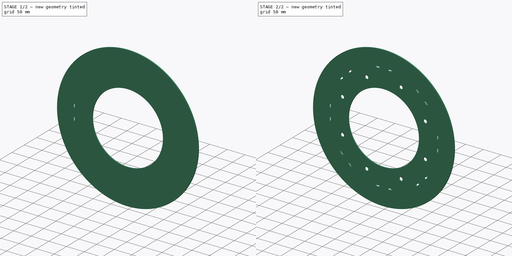
[diagram: build sequence overview — one tinted view per stage of 2, left to right]
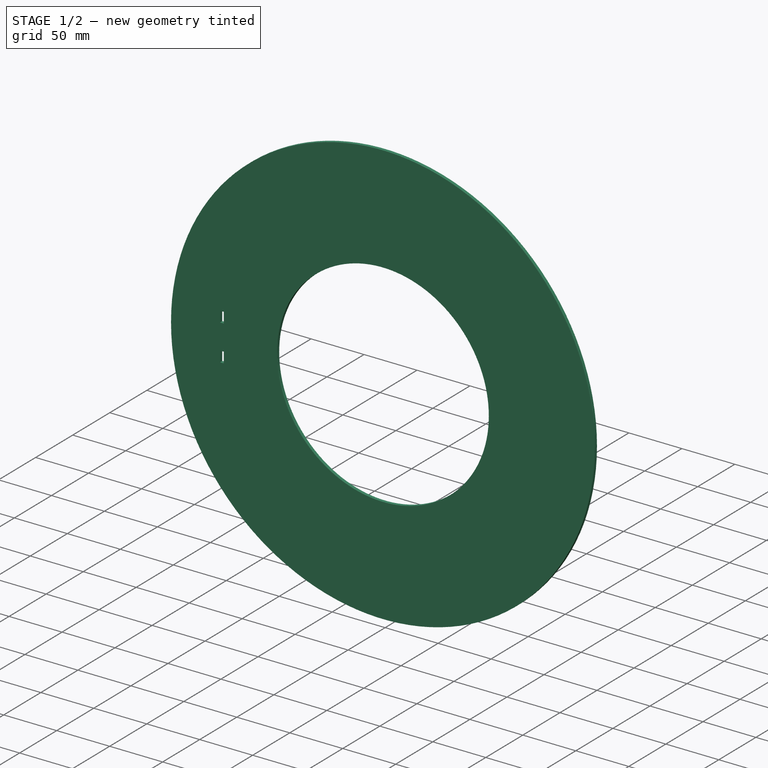
[diagram: stage 1 of 2 — iso view after this stage's code; geometry added in this stage tinted green]
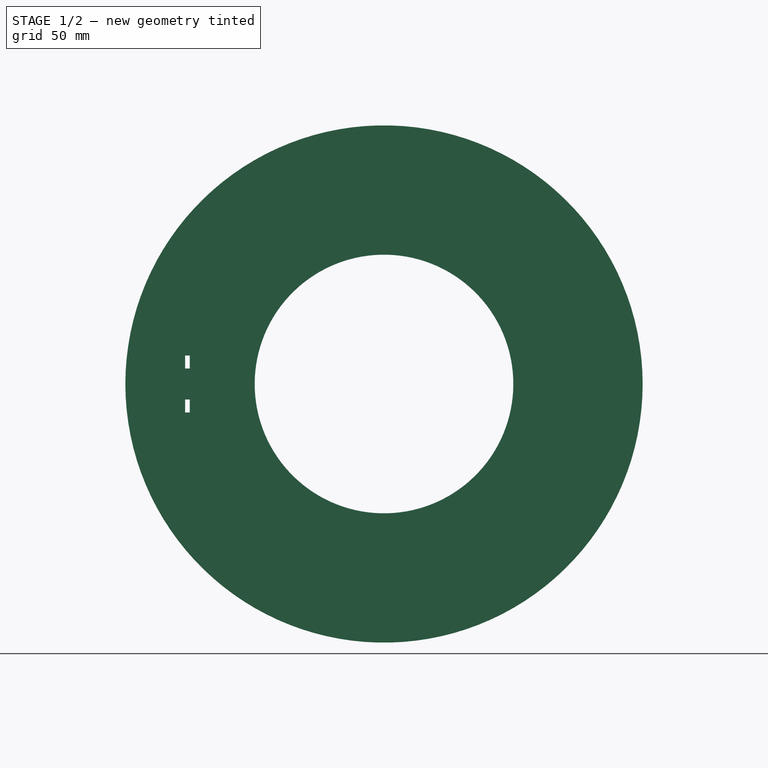
[diagram: stage 1 of 2 — front view after this stage's code; geometry added in this stage tinted green]
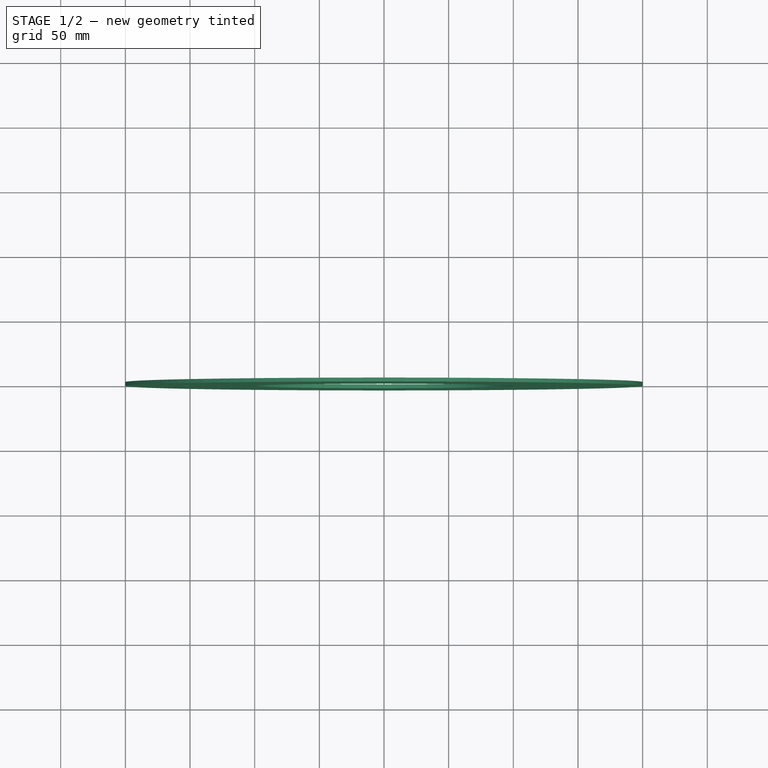
[diagram: stage 1 of 2 — top view after this stage's code; geometry added in this stage tinted green]
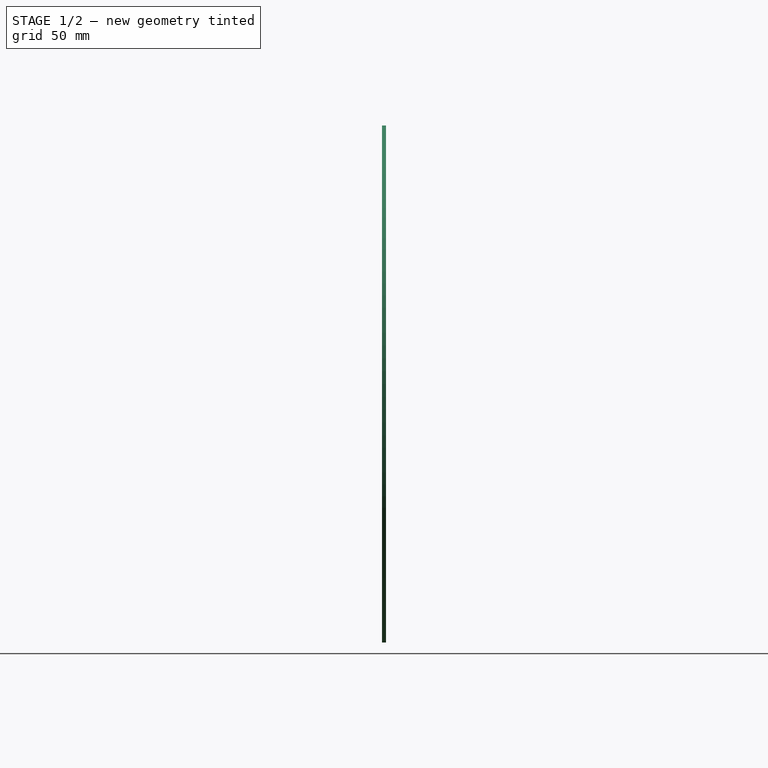
[diagram: stage 1 of 2 — right view after this stage's code; geometry added in this stage tinted green]
FCSTD DOCUMENT  (FreeCAD 0.21R33771 (Git))
Label: FaceFlangeInterlock
License: Creative Commons Attribution-ShareAlike 4.0
LicenseURL: https://creativecommons.org/licenses/by-sa/4.0/
objects: Sketcher::SketchObject×3, PartDesign::Pocket×2, PartDesign::Pad×1, PartDesign::PolarPattern×1, PartDesign::Body×1
note: 11 computed .brp shape members not serialized (recipe doc carries the construction recipe); baked Part::Feature solids carry a one-line shape summary decoded from their .brp

FEATURE [Sketcher::SketchObject] Sketch
  FullyConstrained = true
  MapMode = 5
  Placement = pos=(0,0,0) rot=(1,0,0;1.5708rad)
  Support = -> [XZ_Plane]
  sketch-geometry (24):
    g0: Circle CenterX=0 CenterY=0 CenterZ=0 NormalX=0 NormalY=0 NormalZ=1 AngleXU=0 Radius=127
    g1: Circle CenterX=-127 CenterY=0 CenterZ=0 NormalX=0 NormalY=0 NormalZ=1 AngleXU=0 Radius=15
    g2: LineSegment StartX=-127 StartY=0 StartZ=0 EndX=-142 EndY=0 EndZ=0
    g3: Circle CenterX=0 CenterY=0 CenterZ=0 NormalX=0 NormalY=0 NormalZ=1 AngleXU=0 Radius=200
    g4: Circle CenterX=0 CenterY=0 CenterZ=0 NormalX=0 NormalY=0 NormalZ=1 AngleXU=0 Radius=100
    g5: LineSegment StartX=-152 StartY=62.9605 StartZ=0 EndX=-152 EndY=-62.9605 EndZ=0
    g6: LineSegment StartX=-152 StartY=-62.9605 StartZ=0 EndX=-62.9605 EndY=-152 EndZ=0
    g7: LineSegment StartX=-62.9605 StartY=-152 StartZ=0 EndX=62.9605 EndY=-152 EndZ=0
    g8: LineSegment StartX=62.9605 StartY=-152 StartZ=0 EndX=152 EndY=-62.9605 EndZ=0
    g9: LineSegment StartX=152 StartY=-62.9605 StartZ=0 EndX=152 EndY=62.9605 EndZ=0
    g10: LineSegment StartX=152 StartY=62.9605 StartZ=0 EndX=62.9605 EndY=152 EndZ=0
    g11: LineSegment StartX=62.9605 StartY=152 StartZ=0 EndX=-62.9605 EndY=152 EndZ=0
    g12: LineSegment StartX=-62.9605 StartY=152 StartZ=0 EndX=-152 EndY=62.9605 EndZ=0
    g13: Circle CenterX=0 CenterY=0 CenterZ=0 NormalX=0 NormalY=0 NormalZ=1 AngleXU=0 Radius=164.524
    g14: LineSegment StartX=-153.625 StartY=12 StartZ=0 EndX=-153.625 EndY=22 EndZ=0
    g15: LineSegment StartX=-153.625 StartY=22 StartZ=0 EndX=-150.375 EndY=22 EndZ=0
    g16: LineSegment StartX=-150.375 StartY=22 StartZ=0 EndX=-150.375 EndY=12 EndZ=0
    g17: LineSegment StartX=-150.375 StartY=12 StartZ=0 EndX=-153.625 EndY=12 EndZ=0
    g18: GeomPoint X=-152 Y=17 Z=0
    g19: LineSegment StartX=-150.375 StartY=-12 StartZ=0 EndX=-150.375 EndY=-22 EndZ=0
    g20: LineSegment StartX=-150.375 StartY=-22 StartZ=0 EndX=-153.625 EndY=-22 EndZ=0
    g21: LineSegment StartX=-153.625 StartY=-22 StartZ=0 EndX=-153.625 EndY=-12 EndZ=0
    g22: LineSegment StartX=-153.625 StartY=-12 StartZ=0 EndX=-150.375 EndY=-12 EndZ=0
    g23: GeomPoint X=-152 Y=-17 Z=0
  constraints (58):
    c: Coincident(g0,g-1)
    c: PointOnObject(g1,g0)
    c: Diameter(g1) = 30
    c: Diameter(g0) = 254
    c: PointOnObject(g1,g-1)
    c: Coincident(g2,g1)
    c: PointOnObject(g2,g1)
    c: Horizontal(g2)
    c: Coincident(g3,g0)
    c: Diameter(g3) = 400
    c: Diameter(g4) = 200
    c: Coincident(g4,g3)
    c: Coincident(g5,g6)
    c: Coincident(g6,g7)
    c: Coincident(g7,g8)
    c: Coincident(g8,g9)
    c: Coincident(g9,g10)
    c: Coincident(g10,g11)
    c: Coincident(g11,g12)
    c: Coincident(g12,g5)
    c: Equal(g5, g6-g12) x7
    c: PointOnObject(g5,g13)
    c: PointOnObject(g6,g13)
    c: PointOnObject(g7,g13)
    c: PointOnObject(g8,g13)
    c: PointOnObject(g9,g13)
    c: PointOnObject(g10,g13)
    c: PointOnObject(g11,g13)
    c: PointOnObject(g12,g13)
    c: Coincident(g13,g3)
    c: Vertical(g5)
    c: DistanceX(g5,g2) = 10
    c: Coincident(g14,g15)
    c: Coincident(g15,g16)
    c: Coincident(g16,g17)
    c: Coincident(g17,g14)
    c: Horizontal(g15)
    c: Horizontal(g17)
    c: Vertical(g14)
    c: Vertical(g16)
    c: Symmetric(g15,g14,g18)
    c: PointOnObject(g18,g5)
    c: Coincident(g19,g20)
    c: Coincident(g20,g21)
    c: Coincident(g21,g22)
    c: Coincident(g22,g19)
    c: Horizontal(g20)
    c: Horizontal(g22)
    c: Vertical(g19)
    c: Vertical(g21)
    c: Symmetric(g20,g19,g23)
    c: PointOnObject(g23,g5)
    c: Equal(g14,g21)
    c: Equal(g15,g22)
    c: DistanceX(g15,g15) = 3.25
    c: DistanceY(g14,g14) = 10
    c: DistanceY(g3,g14) = 12
    c: DistanceY(g19,g3) = 12
FEATURE [PartDesign::Pad] Pad
  Direction = (0,-1,2e-16)
  Length = 3
  Length2 = 10
  Placement = pos=(0,0,0) rot=(1,0,0;1.5708rad)
  Profile = -> Sketch
  ReferenceAxis = -> Sketch [N_Axis]
  Type = 0
FEATURE [Sketcher::SketchObject] Sketch001
  FullyConstrained = true
  MapMode = 5
  Placement = pos=(0,0,0) rot=(1,0,0;1.5708rad)
  Support = -> [XZ_Plane]
  expr: Constraints[10] = Sketch.Constraints[10]
  expr: Constraints[2] = Sketch.Constraints[2]
  expr: Constraints[37] = Sketch.Constraints[37]
  expr: Constraints[3] = Sketch.Constraints[3]
  expr: Constraints[61] = Sketch.Constraints[61]
  expr: Constraints[62] = Sketch.Constraints[62]
  expr: Constraints[63] = Sketch.Constraints[63]
  expr: Constraints[9] = Sketch.Constraints[9]
  sketch-geometry (24):
    g0: Circle CenterX=0 CenterY=0 CenterZ=0 NormalX=0 NormalY=0 NormalZ=1 AngleXU=0 Radius=127
    g1: Circle CenterX=-127 CenterY=0 CenterZ=0 NormalX=0 NormalY=0 NormalZ=1 AngleXU=0 Radius=15
    g2: LineSegment StartX=-127 StartY=0 StartZ=0 EndX=-142 EndY=0 EndZ=0
    g3: Circle CenterX=0 CenterY=0 CenterZ=0 NormalX=0 NormalY=0 NormalZ=1 AngleXU=0 Radius=200
    g4: Circle CenterX=0 CenterY=0 CenterZ=0 NormalX=0 NormalY=0 NormalZ=1 AngleXU=0 Radius=100
    g5: LineSegment StartX=-152 StartY=62.9605 StartZ=0 EndX=-152 EndY=-62.9605 EndZ=0
    g6: LineSegment StartX=-152 StartY=-62.9605 StartZ=0 EndX=-62.9605 EndY=-152 EndZ=0
    g7: LineSegment StartX=-62.9605 StartY=-152 StartZ=0 EndX=62.9605 EndY=-152 EndZ=0
    g8: LineSegment StartX=62.9605 StartY=-152 StartZ=0 EndX=152 EndY=-62.9605 EndZ=0
    g9: LineSegment StartX=152 StartY=-62.9605 StartZ=0 EndX=152 EndY=62.9605 EndZ=0
    g10: LineSegment StartX=152 StartY=62.9605 StartZ=0 EndX=62.9605 EndY=152 EndZ=0
    g11: LineSegment StartX=62.9605 StartY=152 StartZ=0 EndX=-62.9605 EndY=152 EndZ=0
    g12: LineSegment StartX=-62.9605 StartY=152 StartZ=0 EndX=-152 EndY=62.9605 EndZ=0
    g13: Circle CenterX=0 CenterY=0 CenterZ=0 NormalX=0 NormalY=0 NormalZ=1 AngleXU=0 Radius=164.524
    g14: LineSegment StartX=-153.75 StartY=12 StartZ=0 EndX=-153.75 EndY=22 EndZ=0
    g15: LineSegment StartX=-153.75 StartY=22 StartZ=0 EndX=-150.25 EndY=22 EndZ=0
    g16: LineSegment StartX=-150.25 StartY=22 StartZ=0 EndX=-150.25 EndY=12 EndZ=0
    g17: LineSegment StartX=-150.25 StartY=12 StartZ=0 EndX=-153.75 EndY=12 EndZ=0
    g18: GeomPoint X=-152 Y=17 Z=0
    g19: LineSegment StartX=-150.25 StartY=-12 StartZ=0 EndX=-150.25 EndY=-22 EndZ=0
    g20: LineSegment StartX=-150.25 StartY=-22 StartZ=0 EndX=-153.75 EndY=-22 EndZ=0
    g21: LineSegment StartX=-153.75 StartY=-22 StartZ=0 EndX=-153.75 EndY=-12 EndZ=0
    g22: LineSegment StartX=-153.75 StartY=-12 StartZ=0 EndX=-150.25 EndY=-12 EndZ=0
    g23: GeomPoint X=-152 Y=-17 Z=0
  constraints (58):
    c: Coincident(g0,g-1)
    c: PointOnObject(g1,g0)
    c: Diameter(g1) = 30
    c: Diameter(g0) = 254
    c: PointOnObject(g1,g-1)
    c: Coincident(g2,g1)
    c: PointOnObject(g2,g1)
    c: Horizontal(g2)
    c: Coincident(g3,g0)
    c: Diameter(g3) = 400
    c: Diameter(g4) = 200
    c: Coincident(g4,g3)
    c: Coincident(g5,g6)
    c: Coincident(g6,g7)
    c: Coincident(g7,g8)
    c: Coincident(g8,g9)
    c: Coincident(g9,g10)
    c: Coincident(g10,g11)
    c: Coincident(g11,g12)
    c: Coincident(g12,g5)
    c: Equal(g5, g6-g12) x7
    c: PointOnObject(g5,g13)
    c: PointOnObject(g6,g13)
    c: PointOnObject(g7,g13)
    c: PointOnObject(g8,g13)
    c: PointOnObject(g9,g13)
    c: PointOnObject(g10,g13)
    c: PointOnObject(g11,g13)
    c: PointOnObject(g12,g13)
    c: Coincident(g13,g3)
    c: Vertical(g5)
    c: DistanceX(g5,g2) = 10
    c: Coincident(g14,g15)
    c: Coincident(g15,g16)
    c: Coincident(g16,g17)
    c: Coincident(g17,g14)
    c: Horizontal(g15)
    c: Horizontal(g17)
    c: Vertical(g14)
    c: Vertical(g16)
    c: Symmetric(g15,g14,g18)
    c: PointOnObject(g18,g5)
    c: Coincident(g19,g20)
    c: Coincident(g20,g21)
    c: Coincident(g21,g22)
    c: Coincident(g22,g19)
    c: Horizontal(g20)
    c: Horizontal(g22)
    c: Vertical(g19)
    c: Vertical(g21)
    c: Symmetric(g20,g19,g23)
    c: PointOnObject(g23,g5)
    c: Equal(g14,g21)
    c: Equal(g15,g22)
    c: DistanceX(g15,g15) = 3.5
    c: DistanceY(g14,g14) = 10
    c: DistanceY(g3,g14) = 12
    c: DistanceY(g19,g3) = 12
FEATURE [PartDesign::Pocket] Pocket
  BaseFeature = -> Pad
  Direction = (0,1,-2e-16)
  Length = 5
  Length2 = 5
  Placement = pos=(0,0,0) rot=(1,0,0;1.5708rad)
  Profile = -> Sketch001
  ReferenceAxis = -> Sketch001 [N_Axis]
  Reversed = true
  Type = 1
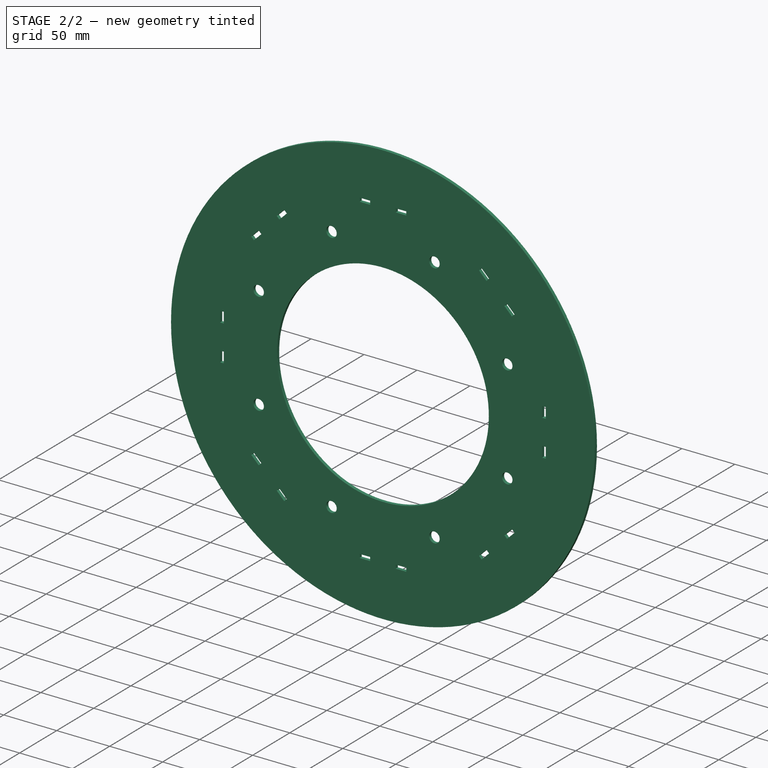
[diagram: stage 2 of 2 — iso view after this stage's code; geometry added in this stage tinted green]
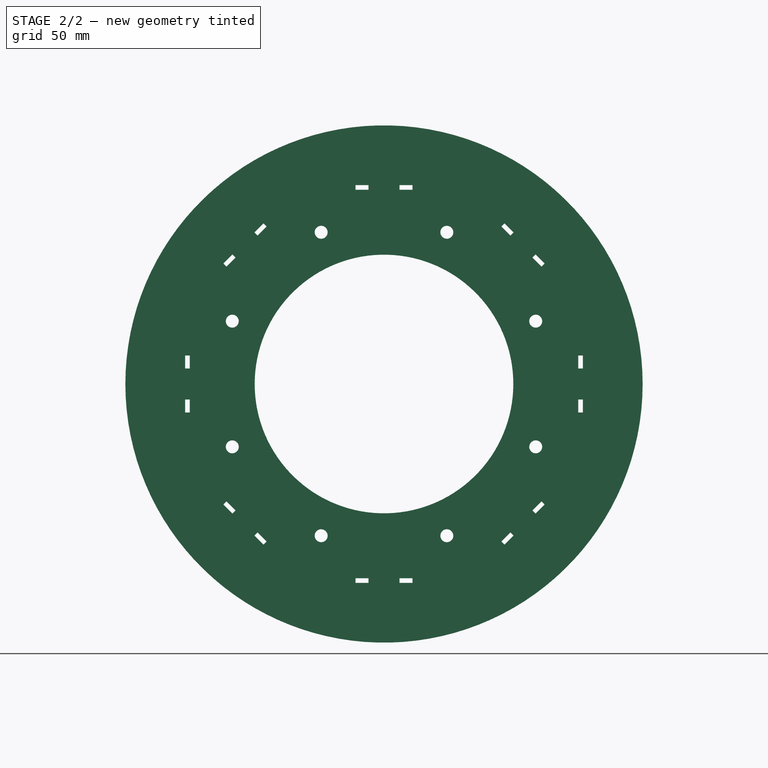
[diagram: stage 2 of 2 — front view after this stage's code; geometry added in this stage tinted green]
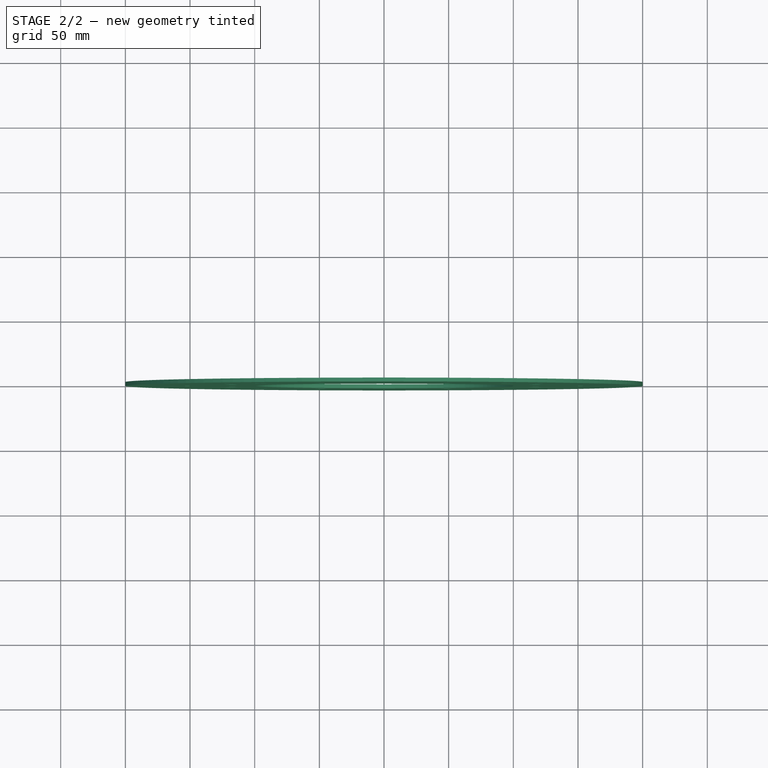
[diagram: stage 2 of 2 — top view after this stage's code; geometry added in this stage tinted green]
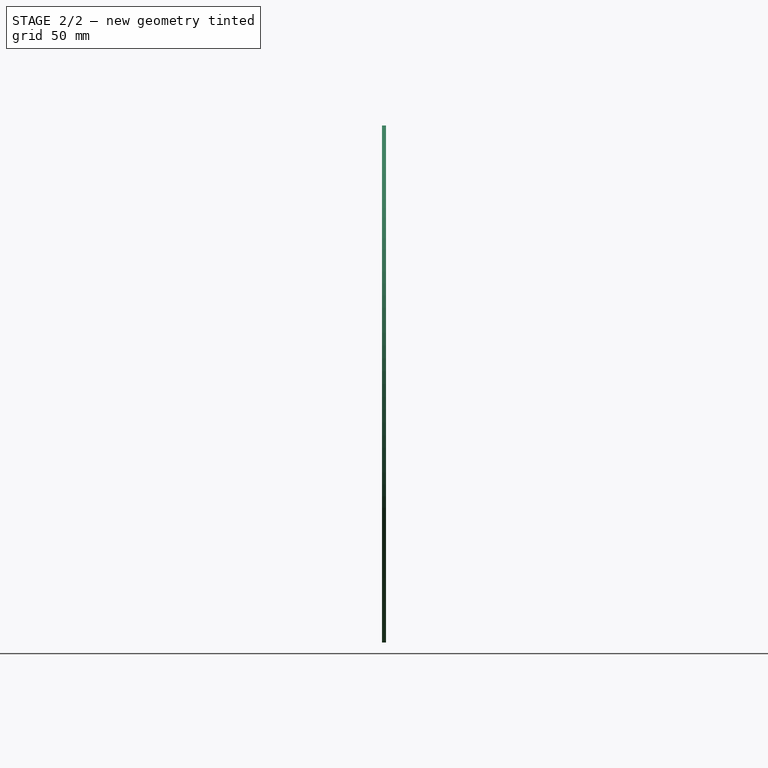
[diagram: stage 2 of 2 — right view after this stage's code; geometry added in this stage tinted green]
FEATURE [PartDesign::PolarPattern] PolarPattern
  Angle = 360
  Axis = -> Sketch001 [N_Axis]
  BaseFeature = -> Pocket
  Occurrences = 8
  Originals = -> [Pocket]
  Placement = pos=(0,0,0) rot=(1,0,0;1.5708rad)
FEATURE [Sketcher::SketchObject] Sketch002
  FullyConstrained = true
  MapMode = 5
  Placement = pos=(0,0,0) rot=(1,0,0;1.5708rad)
  Support = -> [XZ_Plane]
  sketch-geometry (17):
    g0: LineSegment StartX=117.333 StartY=48.6008 StartZ=0 EndX=48.6008 EndY=117.333 EndZ=0
    g1: LineSegment StartX=48.6008 StartY=117.333 StartZ=0 EndX=-48.6008 EndY=117.333 EndZ=0
    g2: LineSegment StartX=-48.6008 StartY=117.333 StartZ=0 EndX=-117.333 EndY=48.6008 EndZ=0
    g3: LineSegment StartX=-117.333 StartY=48.6008 StartZ=0 EndX=-117.333 EndY=-48.6008 EndZ=0
    g4: LineSegment StartX=-117.333 StartY=-48.6008 StartZ=0 EndX=-48.6008 EndY=-117.333 EndZ=0
    g5: LineSegment StartX=-48.6008 StartY=-117.333 StartZ=0 EndX=48.6008 EndY=-117.333 EndZ=0
    g6: LineSegment StartX=48.6008 StartY=-117.333 StartZ=0 EndX=117.333 EndY=-48.6008 EndZ=0
    g7: LineSegment StartX=117.333 StartY=-48.6008 StartZ=0 EndX=117.333 EndY=48.6008 EndZ=0
    g8: Circle CenterX=0 CenterY=0 CenterZ=0 NormalX=0 NormalY=0 NormalZ=1 AngleXU=0 Radius=127
    g9: Circle CenterX=-117.333 CenterY=48.6008 CenterZ=0 NormalX=0 NormalY=0 NormalZ=1 AngleXU=0 Radius=5
    g10: Circle CenterX=-48.6008 CenterY=117.333 CenterZ=0 NormalX=0 NormalY=0 NormalZ=1 AngleXU=0 Radius=5
    g11: Circle CenterX=48.6008 CenterY=117.333 CenterZ=0 NormalX=0 NormalY=0 NormalZ=1 AngleXU=0 Radius=5
    g12: Circle CenterX=117.333 CenterY=48.6008 CenterZ=0 NormalX=0 NormalY=0 NormalZ=1 AngleXU=0 Radius=5
    g13: Circle CenterX=117.333 CenterY=-48.6008 CenterZ=0 NormalX=0 NormalY=0 NormalZ=1 AngleXU=0 Radius=5
    g14: Circle CenterX=48.6008 CenterY=-117.333 CenterZ=0 NormalX=0 NormalY=0 NormalZ=1 AngleXU=0 Radius=5
    g15: Circle CenterX=-48.6008 CenterY=-117.333 CenterZ=0 NormalX=0 NormalY=0 NormalZ=1 AngleXU=0 Radius=5
    g16: Circle CenterX=-117.333 CenterY=-48.6008 CenterZ=0 NormalX=0 NormalY=0 NormalZ=1 AngleXU=0 Radius=5
  constraints (36):
    c: Coincident(g0,g1)
    c: Coincident(g1,g2)
    c: Coincident(g2,g3)
    c: Coincident(g3,g4)
    c: Coincident(g4,g5)
    c: Coincident(g5,g6)
    c: Coincident(g6,g7)
    c: Coincident(g7,g0)
    c: Equal(g0, g1-g7) x7
    c: PointOnObject(g0,g8)
    c: PointOnObject(g1,g8)
    c: PointOnObject(g2,g8)
    c: PointOnObject(g3,g8)
    c: PointOnObject(g4,g8)
    c: PointOnObject(g5,g8)
    c: PointOnObject(g6,g8)
    c: PointOnObject(g7,g8)
    c: Coincident(g8,g-1)
    c: Diameter(g8) = 254
    c: Vertical(g3)
    c: Coincident(g9,g2)
    c: Coincident(g10,g1)
    c: Coincident(g11,g0)
    c: Coincident(g12,g0)
    c: Coincident(g13,g6)
    c: Coincident(g14,g5)
    c: Coincident(g15,g4)
    c: Coincident(g16,g3)
    c: Equal(g9,g10)
    c: Equal(g10,g11)
    c: Equal(g11,g12)
    c: Equal(g12,g13)
    c: Equal(g13,g14)
    c: Equal(g14,g15)
    c: Equal(g15,g16)
    c: Diameter(g9) = 10
FEATURE [PartDesign::Pocket] Pocket001
  BaseFeature = -> PolarPattern
  Direction = (0,1,-2e-16)
  Length = 5
  Length2 = 5
  Placement = pos=(0,0,0) rot=(1,0,0;1.5708rad)
  Profile = -> Sketch002
  ReferenceAxis = -> Sketch002 [N_Axis]
  Reversed = true
  Type = 0
FEATURE [PartDesign::Body] Body
  Group = -> [Sketch,Pad,Sketch001,Pocket,PolarPattern,Sketch002,Pocket001]
  Origin = -> Origin
  Tip = -> Pocket001
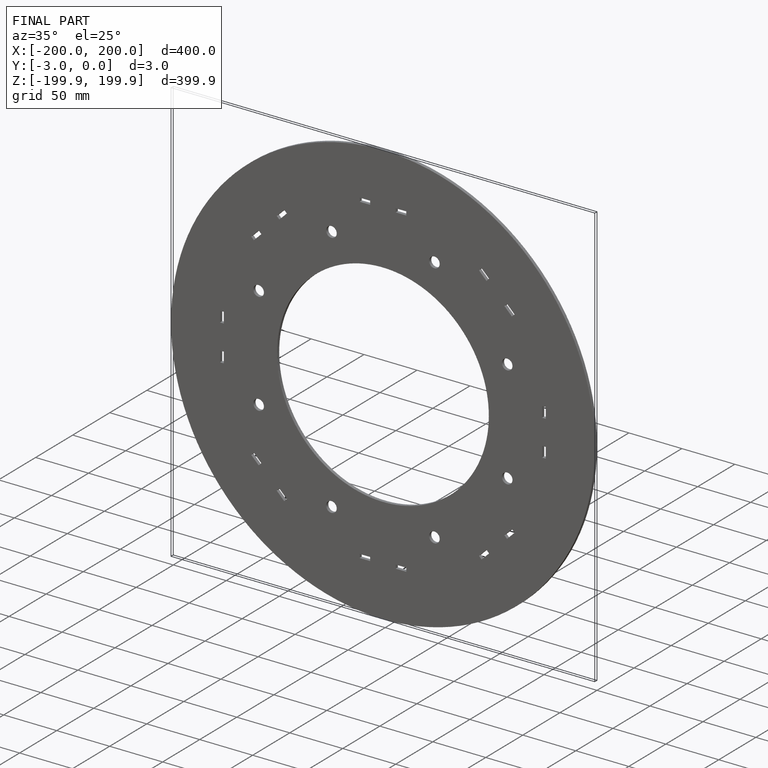
[diagram: finished part — iso view with bounding-box wireframe]
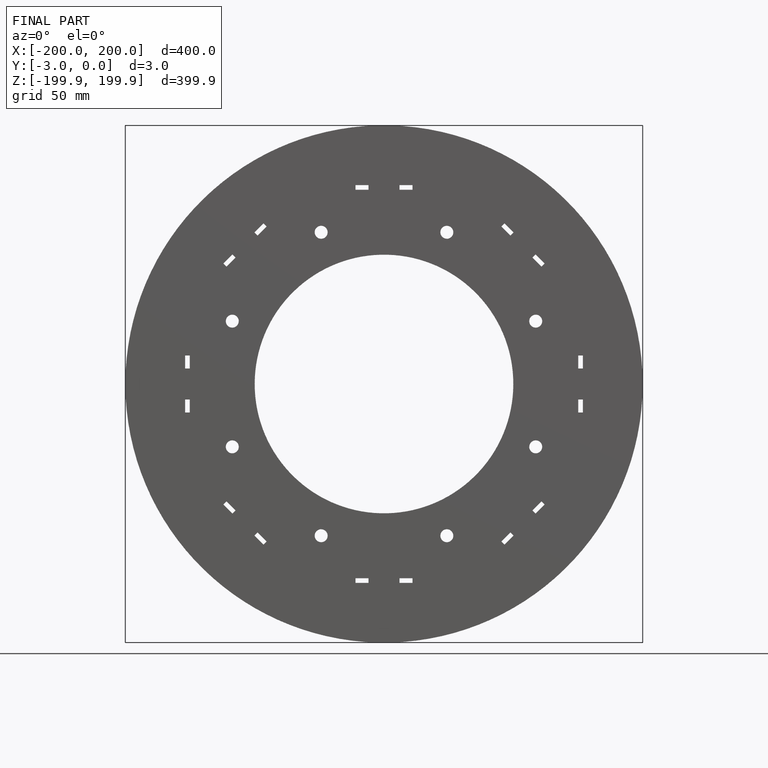
[diagram: finished part — front view with bounding-box wireframe]
